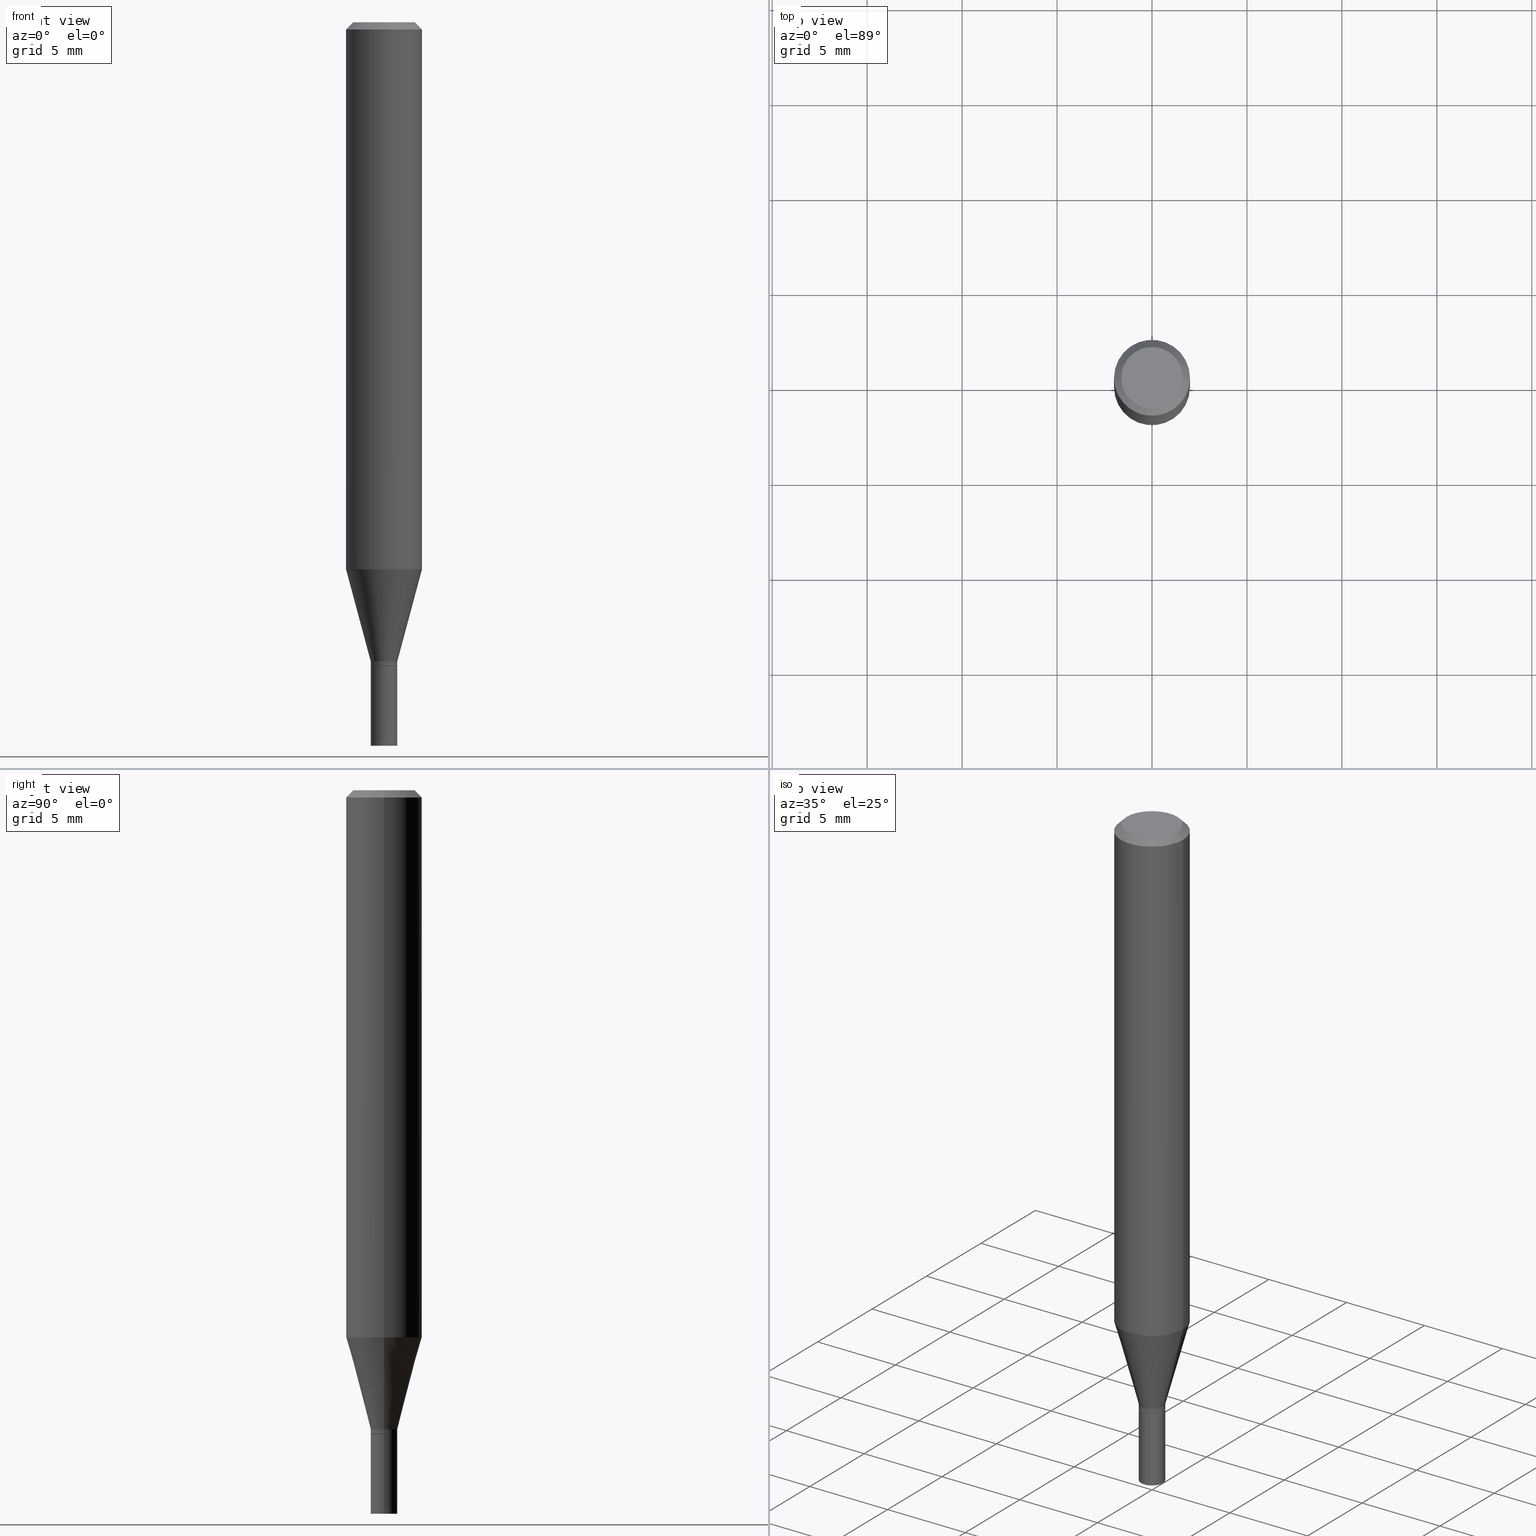
[diagram: canonical four-view strip — front | top / right | iso, engineering-drawing reading convention]
A machine part, canonical four-view strip (front | top / right | iso — engineering-drawing reading convention). The complete STEP part file that produces these views, byte-faithful:
ISO-10303-21;
HEADER;
FILE_DESCRIPTION (( 'STEP AP203' ),
    '1' );
FILE_NAME ('02907.STEP',
    '2024-03-18T22:11:17',
    ( '' ),
    ( '' ),
    'SwSTEP 2.0',
    'SolidWorks 2023',
    '' );
FILE_SCHEMA (( 'CONFIG_CONTROL_DESIGN' ));
ENDSEC;

DATA;
#1 = AXIS2_PLACEMENT_3D ( 'NONE', #428, #238, #127 ) ;
#2 = AXIS2_PLACEMENT_3D ( 'NONE', #442, #149, #153 ) ;
#3 = EDGE_CURVE ( 'NONE', #427, #406, #180, .T. ) ;
#4 = LINE ( 'NONE', #16, #429 ) ;
#5 = ORIENTED_EDGE ( 'NONE', *, *, #65, .F. ) ;
#6 = ADVANCED_FACE ( 'NONE', ( #186 ), #466, .T. ) ;
#7 = DIRECTION ( 'NONE',  ( 1.000000000000000000, -6.982962677686265922E-15, 4.876176775795935793E-29 ) ) ;
#8 = CARTESIAN_POINT ( 'NONE',  ( 0.000000000000000000, 0.000000000000000000, 0.000000000000000000 ) ) ;
#9 = CALENDAR_DATE ( 2024, 18, 3 ) ;
#10 = ORIENTED_EDGE ( 'NONE', *, *, #367, .T. ) ;
#11 = AXIS2_PLACEMENT_3D ( 'NONE', #178, #246, #313 ) ;
#12 = CARTESIAN_POINT ( 'NONE',  ( 0.000000000000000000, 0.000000000000000000, 0.000000000000000000 ) ) ;
#13 = SECURITY_CLASSIFICATION ( '', '', #52 ) ;
#14 = EDGE_CURVE ( 'NONE', #340, #117, #4, .T. ) ;
#15 = ADVANCED_FACE ( 'NONE', ( #46 ), #305, .F. ) ;
#16 = CARTESIAN_POINT ( 'NONE',  ( 0.07875000000000000056, -5.499083108677934443E-16, 3.839989210939299016E-30 ) ) ;
#17 = CARTESIAN_POINT ( 'NONE',  ( -0.07875000000000000056, -1.446162217407653389E-15, -0.01499999999999999944 ) ) ;
#18 = EDGE_CURVE ( 'NONE', #343, #154, #74, .T. ) ;
#19 = CARTESIAN_POINT ( 'NONE',  ( 3.263722668734683183E-29, -4.659730994820061919E-15, -1.334600000000000009 ) ) ;
#20 = PERSON_AND_ORGANIZATION_ROLE ( 'design_owner' ) ;
#21 = AXIS2_PLACEMENT_3D ( 'NONE', #35, #143, #464 ) ;
#22 = VERTEX_POINT ( 'NONE', #439 ) ;
#23 = FACE_OUTER_BOUND ( 'NONE', #98, .T. ) ;
#24 = CARTESIAN_POINT ( 'NONE',  ( 2.772963539945309920E-29, -3.959057023554817696E-15, -1.133918998652473586 ) ) ;
#25 = ORIENTED_EDGE ( 'NONE', *, *, #434, .F. ) ;
#26 = DIRECTION ( 'NONE',  ( 1.000000000000000000, -6.982962677686256455E-15, 0.000000000000000000 ) ) ;
#27 = ORIENTED_EDGE ( 'NONE', *, *, #145, .F. ) ;
#28 = CARTESIAN_POINT ( 'NONE',  ( 3.263722668734683183E-29, -4.659730994820061919E-15, -1.334600000000000009 ) ) ;
#29 = CC_DESIGN_DATE_AND_TIME_ASSIGNMENT ( #43, #166, ( #13 ) ) ;
#30 = LOCAL_TIME ( 18, 11, 17.00000000000000000, #338 ) ;
#31 = CARTESIAN_POINT ( 'NONE',  ( 3.240246168195306775E-29, -4.626212773967169051E-15, -1.325000000000000178 ) ) ;
#32 = ORIENTED_EDGE ( 'NONE', *, *, #286, .T. ) ;
#33 = ORIENTED_EDGE ( 'NONE', *, *, #192, .T. ) ;
#34 = DIRECTION ( 'NONE',  ( 1.000000000000000000, -6.982962677686265922E-15, 0.000000000000000000 ) ) ;
#35 = CARTESIAN_POINT ( 'NONE',  ( 3.240246168195306775E-29, -4.626212773967169051E-15, -1.325000000000000178 ) ) ;
#36 = CIRCLE ( 'NONE', #321, 0.02705000000000000113 ) ;
#37 = PERSON ( 'UNSPECIFIED', 'UNSPECIFIED', 'UNSPECIFIED', ('UNSPECIFIED'), ('UNSPECIFIED'), ('UNSPECIFIED') ) ;
#38 = VECTOR ( 'NONE', #129, 39.37007874015748143 ) ;
#39 = DIRECTION ( 'NONE',  ( -1.000000000000000000, 6.982962677686265922E-15, -4.876176775795935793E-29 ) ) ;
#40 = CARTESIAN_POINT ( 'NONE',  ( 3.668203209277704895E-29, -5.237222008264718177E-15, -1.500000000000000222 ) ) ;
#41 = CARTESIAN_POINT ( 'NONE',  ( -0.02755000000000000157, -4.752721977840483101E-15, -1.500000000000000222 ) ) ;
#42 = DIRECTION ( 'NONE',  ( -2.445468806185136597E-29, 3.491481338843145583E-15, 1.000000000000000000 ) ) ;
#43 = DATE_AND_TIME ( #224, #113 ) ;
#44 = DIRECTION ( 'NONE',  ( -0.2588190451025209060, 5.211531920934547097E-15, 0.9659258262890682012 ) ) ;
#45 = PERSON_AND_ORGANIZATION ( #37, #261 ) ;
#46 = FACE_OUTER_BOUND ( 'NONE', #420, .T. ) ;
#47 = CIRCLE ( 'NONE', #366, 0.07875000000000000056 ) ;
#48 = DIRECTION ( 'NONE',  ( -2.445468806185136877E-29, 3.491481338843145188E-15, 1.000000000000000000 ) ) ;
#49 = ADVANCED_FACE ( 'NONE', ( #111 ), #265, .T. ) ;
#50 = ORIENTED_EDGE ( 'NONE', *, *, #451, .F. ) ;
#51 = FACE_OUTER_BOUND ( 'NONE', #73, .T. ) ;
#52 = SECURITY_CLASSIFICATION_LEVEL ( 'unclassified' ) ;
#53 = LINE ( 'NONE', #344, #54 ) ;
#54 = VECTOR ( 'NONE', #342, 39.37007874015748143 ) ;
#55 = DATE_AND_TIME ( #9, #30 ) ;
#56 = DIRECTION ( 'NONE',  ( -1.000000000000000000, 6.982962677686265922E-15, 0.000000000000000000 ) ) ;
#57 = MANIFOLD_SOLID_BREP ( 'Body-Move/Copy2[1]', #354 ) ;
#58 = ORIENTED_EDGE ( 'NONE', *, *, #176, .F. ) ;
#59 = DIRECTION ( 'NONE',  ( -2.445468806185136597E-29, 3.491481338843145583E-15, 1.000000000000000000 ) ) ;
#60 = ORIENTED_EDGE ( 'NONE', *, *, #295, .T. ) ;
#61 = LINE ( 'NONE', #212, #38 ) ;
#62 = AXIS2_PLACEMENT_3D ( 'NONE', #372, #279, #56 ) ;
#63 = PRODUCT ( '02907', '02907', '', ( #165 ) ) ;
#64 = EDGE_LOOP ( 'NONE', ( #375, #128, #463, #422 ) ) ;
#65 = EDGE_CURVE ( 'NONE', #397, #427, #294, .T. ) ;
#66 = CONICAL_SURFACE ( 'NONE', #62, 0.07875000000000000056, 0.7853981633974631560 ) ;
#67 = AXIS2_PLACEMENT_3D ( 'NONE', #247, #262, #90 ) ;
#68 = PRODUCT_DEFINITION_SHAPE ( 'NONE', 'NONE',  #76 ) ;
#69 = DIMENSIONAL_EXPONENTS ( 1.000000000000000000, 0.000000000000000000, 0.000000000000000000, 0.000000000000000000, 0.000000000000000000, 0.000000000000000000, 0.000000000000000000 ) ;
#70 = ORIENTED_EDGE ( 'NONE', *, *, #167, .T. ) ;
#71 = AXIS2_PLACEMENT_3D ( 'NONE', #258, #322, #142 ) ;
#72 = AXIS2_PLACEMENT_3D ( 'NONE', #24, #257, #215 ) ;
#73 = EDGE_LOOP ( 'NONE', ( #209, #116, #327, #130 ) ) ;
#74 = LINE ( 'NONE', #119, #150 ) ;
#75 = CARTESIAN_POINT ( 'NONE',  ( 0.02705000000000000113, -4.848620135251475705E-15, -1.334600000000000009 ) ) ;
#76 = PRODUCT_DEFINITION ( 'UNKNOWN', '', #163, #202 ) ;
#77 = COORDINATED_UNIVERSAL_TIME_OFFSET ( 5, 0, .BEHIND. ) ;
#78 = DIRECTION ( 'NONE',  ( -2.445468806185136877E-29, 3.491481338843145188E-15, 1.000000000000000000 ) ) ;
#79 = CARTESIAN_POINT ( 'NONE',  ( 0.02754999999999993218, -4.818593395737425055E-15, -1.325000000000000178 ) ) ;
#80 = CARTESIAN_POINT ( 'NONE',  ( -0.06375000000000000111, 4.713499807438221352E-16, -4.447989849365133964E-16 ) ) ;
#81 = EDGE_LOOP ( 'NONE', ( #32, #408 ) ) ;
#82 = AXIS2_PLACEMENT_3D ( 'NONE', #319, #462, #136 ) ;
#83 = ORIENTED_EDGE ( 'NONE', *, *, #381, .T. ) ;
#84 = LINE ( 'NONE', #270, #194 ) ;
#85 = DIRECTION ( 'NONE',  ( -2.445468806185136597E-29, 3.491481338843145583E-15, 1.000000000000000000 ) ) ;
#86 = EDGE_LOOP ( 'NONE', ( #370, #284, #242, #253 ) ) ;
#87 = CYLINDRICAL_SURFACE ( 'NONE', #195, 0.02754999999999993218 ) ;
#88 = VERTEX_POINT ( 'NONE', #79 ) ;
#89 = DIRECTION ( 'NONE',  ( -2.445468806185136597E-29, 3.491481338843145583E-15, 1.000000000000000000 ) ) ;
#90 = DIRECTION ( 'NONE',  ( 1.000000000000000000, -6.982962677686265922E-15, 4.876176775795936353E-29 ) ) ;
#91 = PERSON_AND_ORGANIZATION ( #37, #261 ) ;
#92 = EDGE_LOOP ( 'NONE', ( #441, #207, #216, #27 ) ) ;
#93 = CARTESIAN_POINT ( 'NONE',  ( 3.263722668734683183E-29, -4.659730994820061919E-15, -1.334600000000000009 ) ) ;
#94 = PERSON_AND_ORGANIZATION ( #37, #261 ) ;
#95 = AXIS2_PLACEMENT_3D ( 'NONE', #28, #174, #26 ) ;
#96 = ORIENTED_EDGE ( 'NONE', *, *, #367, .F. ) ;
#97 = CARTESIAN_POINT ( 'NONE',  ( 3.262499934331591502E-29, -4.657985254150640416E-15, -1.334100000000000064 ) ) ;
#98 = EDGE_LOOP ( 'NONE', ( #316, #347, #96, #312 ) ) ;
#99 = CARTESIAN_POINT ( 'NONE',  ( 3.668203209277705088E-31, -5.237222008264718399E-17, -0.01499999999999999944 ) ) ;
#100 = ORIENTED_EDGE ( 'NONE', *, *, #357, .F. ) ;
#101 = CC_DESIGN_DATE_AND_TIME_ASSIGNMENT ( #362, #446, ( #76 ) ) ;
#102 = DIRECTION ( 'NONE',  ( 1.000000000000000000, -6.982962677686256455E-15, 0.000000000000000000 ) ) ;
#103 = CLOSED_SHELL ( 'NONE', ( #228, #198, #283, #137, #49, #251, #320, #306, #259, #15, #6, #444 ) ) ;
#104 = EDGE_CURVE ( 'NONE', #397, #88, #84, .T. ) ;
#105 = CIRCLE ( 'NONE', #355, 0.07875000000000000056 ) ;
#106 = PLANE ( 'NONE',  #71 ) ;
#107 = CARTESIAN_POINT ( 'NONE',  ( -0.02705000000000000113, -4.467529184796954688E-15, -1.334600000000000009 ) ) ;
#108 = CARTESIAN_POINT ( 'NONE',  ( 0.02755000000000000157, -4.852111616590317923E-15, -1.334600000000000009 ) ) ;
#109 = AXIS2_PLACEMENT_3D ( 'NONE', #31, #59, #314 ) ;
#110 = CARTESIAN_POINT ( 'NONE',  ( -0.02755000000000000157, 1.957545237019076124E-16, -1.355166617365226565E-30 ) ) ;
#111 = FACE_OUTER_BOUND ( 'NONE', #232, .T. ) ;
#112 = PERSON_AND_ORGANIZATION_ROLE ( 'creator' ) ;
#113 = LOCAL_TIME ( 18, 11, 17.00000000000000000, #77 ) ;
#114 = CARTESIAN_POINT ( 'NONE',  ( 0.07875000000000000056, -6.022805309504406221E-16, -0.01499999999999999944 ) ) ;
#115 = CALENDAR_DATE ( 2024, 18, 3 ) ;
#116 = ORIENTED_EDGE ( 'NONE', *, *, #286, .F. ) ;
#117 = VERTEX_POINT ( 'NONE', #114 ) ;
#118 = ORIENTED_EDGE ( 'NONE', *, *, #147, .F. ) ;
#119 = CARTESIAN_POINT ( 'NONE',  ( -0.07875000000000000056, 5.595524044110789003E-16, -3.873661383575737792E-30 ) ) ;
#120 = APPROVAL_STATUS ( 'not_yet_approved' ) ;
#121 = ORIENTED_EDGE ( 'NONE', *, *, #167, .F. ) ;
#122 = CC_DESIGN_PERSON_AND_ORGANIZATION_ASSIGNMENT ( #94, #415, ( #163 ) ) ;
#123 = CIRCLE ( 'NONE', #450, 0.02755000000000000157 ) ;
#124 = DIRECTION ( 'NONE',  ( 2.438088387897960049E-29, -3.491481338843145188E-15, -1.000000000000000000 ) ) ;
#125 = CALENDAR_DATE ( 2024, 18, 3 ) ;
#126 = ORIENTED_EDGE ( 'NONE', *, *, #220, .T. ) ;
#127 = DIRECTION ( 'NONE',  ( 1.000000000000000000, -6.982962677686256455E-15, 0.000000000000000000 ) ) ;
#128 = ORIENTED_EDGE ( 'NONE', *, *, #357, .T. ) ;
#129 = DIRECTION ( 'NONE',  ( -0.7071067811865580088, 2.468850131082366712E-15, -0.7071067811865370256 ) ) ;
#130 = ORIENTED_EDGE ( 'NONE', *, *, #451, .T. ) ;
#131 = CARTESIAN_POINT ( 'NONE',  ( 0.07875000000000000056, -5.926364374071552647E-16, -0.01499999999999999944 ) ) ;
#132 = APPROVAL_DATE_TIME ( #304, #326 ) ;
#133 = CONICAL_SURFACE ( 'NONE', #315, 0.07875000000000000056, 0.7853981633974631560 ) ;
#134 = DIRECTION ( 'NONE',  ( 1.000000000000000000, -6.982962677686273810E-15, 0.000000000000000000 ) ) ;
#135 = ORIENTED_EDGE ( 'NONE', *, *, #460, .F. ) ;
#136 = DIRECTION ( 'NONE',  ( 1.000000000000000000, -6.982962677686265922E-15, 4.852736867747365646E-29 ) ) ;
#137 = ADVANCED_FACE ( 'NONE', ( #263 ), #368, .T. ) ;
#138 = CARTESIAN_POINT ( 'NONE',  ( 0.02705000000000000113, -4.848620135251475705E-15, -1.334600000000000009 ) ) ;
#139 = CARTESIAN_POINT ( 'NONE',  ( -0.02755000000000000157, -4.752721977840483101E-15, -1.334600000000000009 ) ) ;
#140 = AXIS2_PLACEMENT_3D ( 'NONE', #196, #124, #39 ) ;
#141 = CIRCLE ( 'NONE', #309, 0.07875000000000000056 ) ;
#142 = DIRECTION ( 'NONE',  ( 1.000000000000000000, -6.982962677686265922E-15, 4.876176775795935793E-29 ) ) ;
#143 = DIRECTION ( 'NONE',  ( -2.445468806185136597E-29, 3.491481338843145583E-15, 1.000000000000000000 ) ) ;
#144 = EDGE_CURVE ( 'NONE', #406, #343, #358, .T. ) ;
#145 = EDGE_CURVE ( 'NONE', #22, #389, #334, .T. ) ;
#146 = AXIS2_PLACEMENT_3D ( 'NONE', #19, #89, #378 ) ;
#147 = EDGE_CURVE ( 'NONE', #22, #447, #332, .T. ) ;
#148 = DIRECTION ( 'NONE',  ( -2.438088387897960049E-29, 3.491481338843145188E-15, 1.000000000000000000 ) ) ;
#149 = DIRECTION ( 'NONE',  ( 0.000000000000000000, 0.000000000000000000, 1.000000000000000000 ) ) ;
#150 = VECTOR ( 'NONE', #78, 39.37007874015748143 ) ;
#151 = APPROVAL_DATE_TIME ( #55, #336 ) ;
#152 = EDGE_LOOP ( 'NONE', ( #349, #387, #162, #423 ) ) ;
#153 = DIRECTION ( 'NONE',  ( 1.000000000000000000, 0.000000000000000000, 0.000000000000000000 ) ) ;
#154 = VERTEX_POINT ( 'NONE', #17 ) ;
#155 = APPLICATION_PROTOCOL_DEFINITION ( 'international standard', 'config_control_design', 1994, #413 ) ;
#156 = ORIENTED_EDGE ( 'NONE', *, *, #465, .F. ) ;
#157 = ADVANCED_FACE ( 'NONE', ( #158 ), #330, .F. ) ;
#158 = FACE_OUTER_BOUND ( 'NONE', #445, .T. ) ;
#159 = PERSON_AND_ORGANIZATION ( #37, #261 ) ;
#160 = VECTOR ( 'NONE', #48, 39.37007874015748143 ) ;
#161 = AXIS2_PLACEMENT_3D ( 'NONE', #374, #417, #317 ) ;
#162 = ORIENTED_EDGE ( 'NONE', *, *, #104, .T. ) ;
#163 = PRODUCT_DEFINITION_FORMATION_WITH_SPECIFIED_SOURCE ( 'ANY', '', #63, .NOT_KNOWN. ) ;
#164 = CARTESIAN_POINT ( 'NONE',  ( 0.000000000000000000, 0.000000000000000000, 0.000000000000000000 ) ) ;
#165 = MECHANICAL_CONTEXT ( 'NONE', #390, 'mechanical' ) ;
#166 = DATE_TIME_ROLE ( 'classification_date' ) ;
#167 = EDGE_CURVE ( 'NONE', #88, #340, #53, .T. ) ;
#168 = ORIENTED_EDGE ( 'NONE', *, *, #383, .T. ) ;
#169 = LINE ( 'NONE', #131, #300 ) ;
#170 = FACE_OUTER_BOUND ( 'NONE', #237, .T. ) ;
#171 = ORIENTED_EDGE ( 'NONE', *, *, #144, .F. ) ;
#172 = ORIENTED_EDGE ( 'NONE', *, *, #14, .T. ) ;
#173 = CIRCLE ( 'NONE', #82, 0.06375000000000000111 ) ;
#174 = DIRECTION ( 'NONE',  ( -2.445468806185136597E-29, 3.491481338843145583E-15, 1.000000000000000000 ) ) ;
#175 = CARTESIAN_POINT ( 'NONE',  ( 0.02754999999999992524, -4.850365875920897209E-15, -1.334100000000000064 ) ) ;
#176 = EDGE_CURVE ( 'NONE', #426, #248, #398, .T. ) ;
#177 = ORIENTED_EDGE ( 'NONE', *, *, #293, .F. ) ;
#178 = CARTESIAN_POINT ( 'NONE',  ( 4.451638707024993845E-16, 0.06375000000000000111, -4.449814278195055523E-16 ) ) ;
#179 = DIRECTION ( 'NONE',  ( 1.000000000000000000, -6.982962677686273810E-15, 0.000000000000000000 ) ) ;
#180 = LINE ( 'NONE', #399, #160 ) ;
#181 = CARTESIAN_POINT ( 'NONE',  ( 3.668203209277705088E-31, -5.237222008264718399E-17, -0.01499999999999999944 ) ) ;
#182 = AXIS2_PLACEMENT_3D ( 'NONE', #97, #285, #424 ) ;
#183 = CC_DESIGN_PERSON_AND_ORGANIZATION_ASSIGNMENT ( #440, #20, ( #63 ) ) ;
#184 = ADVANCED_BREP_SHAPE_REPRESENTATION ( '02907', ( #57, #363, #2 ), #436 ) ;
#185 = AXIS2_PLACEMENT_3D ( 'NONE', #453, #382, #243 ) ;
#186 = FACE_OUTER_BOUND ( 'NONE', #411, .T. ) ;
#187 = CARTESIAN_POINT ( 'NONE',  ( 3.263722668734683183E-29, -4.659730994820061919E-15, -1.334600000000000009 ) ) ;
#188 = LINE ( 'NONE', #75, #204 ) ;
#189 = APPROVAL_ROLE ( '' ) ;
#190 = DIRECTION ( 'NONE',  ( -2.445468806185136877E-29, 3.491481338843145188E-15, 1.000000000000000000 ) ) ;
#191 = COORDINATED_UNIVERSAL_TIME_OFFSET ( 5, 0, .BEHIND. ) ;
#192 = EDGE_CURVE ( 'NONE', #248, #426, #36, .T. ) ;
#193 = AXIS2_PLACEMENT_3D ( 'NONE', #40, #403, #356 ) ;
#194 = VECTOR ( 'NONE', #235, 39.37007874015748143 ) ;
#195 = AXIS2_PLACEMENT_3D ( 'NONE', #12, #373, #335 ) ;
#196 = CARTESIAN_POINT ( 'NONE',  ( 1.923806217702892842E-16, 0.02754999999999534210, -1.334600000000000009 ) ) ;
#197 = COORDINATED_UNIVERSAL_TIME_OFFSET ( 5, 0, .BEHIND. ) ;
#198 = ADVANCED_FACE ( 'NONE', ( #458 ), #419, .T. ) ;
#199 = EDGE_CURVE ( 'NONE', #379, #117, #169, .T. ) ;
#200 = DIRECTION ( 'NONE',  ( 1.000000000000000000, -6.982962677686275388E-15, 0.000000000000000000 ) ) ;
#201 = FACE_OUTER_BOUND ( 'NONE', #302, .T. ) ;
#202 = DESIGN_CONTEXT ( 'detailed design', #413, 'design' ) ;
#203 = CIRCLE ( 'NONE', #72, 0.07875000000000000056 ) ;
#204 = VECTOR ( 'NONE', #405, 39.37007874015748143 ) ;
#205 = DIRECTION ( 'NONE',  ( 1.000000000000000000, -6.982962677686273810E-15, 0.000000000000000000 ) ) ;
#206 = PERSON_AND_ORGANIZATION ( #37, #261 ) ;
#207 = ORIENTED_EDGE ( 'NONE', *, *, #438, .T. ) ;
#208 = CYLINDRICAL_SURFACE ( 'NONE', #385, 0.07875000000000000056 ) ;
#209 = ORIENTED_EDGE ( 'NONE', *, *, #199, .F. ) ;
#210 = DIRECTION ( 'NONE',  ( -1.000000000000000000, 6.982962677686265922E-15, 0.000000000000000000 ) ) ;
#211 = CIRCLE ( 'NONE', #1, 0.02755000000000000157 ) ;
#212 = CARTESIAN_POINT ( 'NONE',  ( -0.07875000000000000056, 4.975360907851462665E-16, -0.01499999999999999944 ) ) ;
#213 = CC_DESIGN_PERSON_AND_ORGANIZATION_ASSIGNMENT ( #206, #418, ( #163 ) ) ;
#214 = APPROVAL_PERSON_ORGANIZATION ( #45, #326, #410 ) ;
#215 = DIRECTION ( 'NONE',  ( 1.000000000000000000, -6.982962677686268288E-15, 0.000000000000000000 ) ) ;
#216 = ORIENTED_EDGE ( 'NONE', *, *, #295, .F. ) ;
#217 = CARTESIAN_POINT ( 'NONE',  ( 0.06375000000000000111, -5.149965923825459168E-16, -4.447989849365068883E-16 ) ) ;
#218 = CIRCLE ( 'NONE', #182, 0.02754999999999992524 ) ;
#219 = CC_DESIGN_APPROVAL ( #269, ( #76 ) ) ;
#220 = EDGE_CURVE ( 'NONE', #416, #389, #244, .T. ) ;
#221 = CIRCLE ( 'NONE', #21, 0.02754999999999993218 ) ;
#222 = DIRECTION ( 'NONE',  ( -2.445468806185136597E-29, 3.491481338843145583E-15, 1.000000000000000000 ) ) ;
#223 = COORDINATED_UNIVERSAL_TIME_OFFSET ( 5, 0, .BEHIND. ) ;
#224 = CALENDAR_DATE ( 2024, 18, 3 ) ;
#225 = PERSON_AND_ORGANIZATION ( #37, #261 ) ;
#226 = PRODUCT_RELATED_PRODUCT_CATEGORY ( 'detail', '', ( #63 ) ) ;
#227 = ORIENTED_EDGE ( 'NONE', *, *, #425, .F. ) ;
#228 = ADVANCED_FACE ( 'NONE', ( #23 ), #276, .T. ) ;
#229 = CARTESIAN_POINT ( 'NONE',  ( -0.02754999999999993218, -4.430458250265261709E-15, -1.325000000000000178 ) ) ;
#230 = LENGTH_MEASURE_WITH_UNIT ( LENGTH_MEASURE( 0.02539999999999999897 ), #404 );
#231 = ADVANCED_FACE ( 'NONE', ( #461 ), #455, .T. ) ;
#232 = EDGE_LOOP ( 'NONE', ( #10, #287, #227, #121 ) ) ;
#233 = VECTOR ( 'NONE', #190, 39.37007874015748143 ) ;
#234 = APPROVAL_PERSON_ORGANIZATION ( #91, #336, #189 ) ;
#235 = DIRECTION ( 'NONE',  ( -2.445468806185136877E-29, 3.491481338843145188E-15, 1.000000000000000000 ) ) ;
#236 = DIRECTION ( 'NONE',  ( 1.000000000000000000, -6.982962677686268288E-15, 0.000000000000000000 ) ) ;
#237 = EDGE_LOOP ( 'NONE', ( #171, #168, #70, #135 ) ) ;
#238 = DIRECTION ( 'NONE',  ( -2.445468806185136597E-29, 3.491481338843145583E-15, 1.000000000000000000 ) ) ;
#239 = DIRECTION ( 'NONE',  ( 1.000000000000000000, -6.982962677686265922E-15, 0.000000000000000000 ) ) ;
#240 = CC_DESIGN_PERSON_AND_ORGANIZATION_ASSIGNMENT ( #267, #301, ( #13 ) ) ;
#241 = EDGE_CURVE ( 'NONE', #427, #397, #218, .T. ) ;
#242 = ORIENTED_EDGE ( 'NONE', *, *, #381, .F. ) ;
#243 = DIRECTION ( 'NONE',  ( 1.000000000000000000, -6.982962677686265922E-15, 4.852736867747365646E-29 ) ) ;
#244 = CIRCLE ( 'NONE', #95, 0.02755000000000000157 ) ;
#245 = ORIENTED_EDGE ( 'NONE', *, *, #292, .F. ) ;
#246 = DIRECTION ( 'NONE',  ( 2.438088387897960049E-29, -3.491481338843145188E-15, -1.000000000000000000 ) ) ;
#247 = CARTESIAN_POINT ( 'NONE',  ( 0.000000000000000000, 0.000000000000000000, 0.000000000000000000 ) ) ;
#248 = VERTEX_POINT ( 'NONE', #288 ) ;
#249 = FACE_OUTER_BOUND ( 'NONE', #454, .T. ) ;
#250 = ORIENTED_EDGE ( 'NONE', *, *, #192, .F. ) ;
#251 = ADVANCED_FACE ( 'NONE', ( #170 ), #459, .T. ) ;
#252 = DIRECTION ( 'NONE',  ( 2.445468806185136597E-29, -3.491481338843145583E-15, -1.000000000000000000 ) ) ;
#253 = ORIENTED_EDGE ( 'NONE', *, *, #14, .F. ) ;
#254 = VECTOR ( 'NONE', #44, 39.37007874015748143 ) ;
#255 = CARTESIAN_POINT ( 'NONE',  ( 3.240246168195306775E-29, -4.626212773967169051E-15, -1.325000000000000178 ) ) ;
#256 = VECTOR ( 'NONE', #353, 39.37007874015748143 ) ;
#257 = DIRECTION ( 'NONE',  ( -2.445468806185136597E-29, 3.491481338843145583E-15, 1.000000000000000000 ) ) ;
#258 = CARTESIAN_POINT ( 'NONE',  ( 3.576687321579069994E-29, -5.368277968210015545E-15, -1.500000000000000222 ) ) ;
#259 = ADVANCED_FACE ( 'NONE', ( #310 ), #412, .F. ) ;
#260 = AXIS2_PLACEMENT_3D ( 'NONE', #348, #341, #134 ) ;
#261 = ORGANIZATION ( 'UNSPECIFIED', 'UNSPECIFIED', '' ) ;
#262 = DIRECTION ( 'NONE',  ( -2.445468806185136597E-29, 3.491481338843145583E-15, 1.000000000000000000 ) ) ;
#263 = FACE_OUTER_BOUND ( 'NONE', #86, .T. ) ;
#264 = APPROVAL_DATE_TIME ( #449, #269 ) ;
#265 = CONICAL_SURFACE ( 'NONE', #392, 0.02754999999999993218, 0.2617993877991495744 ) ;
#266 = DIRECTION ( 'NONE',  ( -2.445468806185136597E-29, 3.491481338843145583E-15, 1.000000000000000000 ) ) ;
#267 = PERSON_AND_ORGANIZATION ( #37, #261 ) ;
#268 = DIRECTION ( 'NONE',  ( 1.000000000000000000, -6.982962677686265922E-15, 4.876176775795935232E-29 ) ) ;
#269 = APPROVAL ( #307, 'UNSPECIFIED' ) ;
#270 = CARTESIAN_POINT ( 'NONE',  ( 0.02754999999999993218, -1.923806217702561767E-16, 1.343386701731777005E-30 ) ) ;
#271 = CARTESIAN_POINT ( 'NONE',  ( 3.668203209277705088E-31, -5.237222008264718399E-17, -0.01499999999999999944 ) ) ;
#272 = CYLINDRICAL_SURFACE ( 'NONE', #67, 0.02755000000000000157 ) ;
#273 = ORIENTED_EDGE ( 'NONE', *, *, #176, .T. ) ;
#274 =( NAMED_UNIT ( * ) PLANE_ANGLE_UNIT ( ) SI_UNIT ( $, .RADIAN. ) );
#275 = ORIENTED_EDGE ( 'NONE', *, *, #18, .F. ) ;
#276 = CYLINDRICAL_SURFACE ( 'NONE', #161, 0.02754999999999993218 ) ;
#277 = EDGE_LOOP ( 'NONE', ( #118, #100 ) ) ;
#278 = ORIENTED_EDGE ( 'NONE', *, *, #434, .T. ) ;
#279 = DIRECTION ( 'NONE',  ( 2.445468806185136597E-29, -3.491481338843145583E-15, -1.000000000000000000 ) ) ;
#280 = AXIS2_PLACEMENT_3D ( 'NONE', #361, #222, #268 ) ;
#281 = ORIENTED_EDGE ( 'NONE', *, *, #465, .T. ) ;
#282 = DIRECTION ( 'NONE',  ( 0.7071067811865580088, -7.319954787623290755E-15, -0.7071067811865370256 ) ) ;
#283 = ADVANCED_FACE ( 'NONE', ( #249 ), #133, .T. ) ;
#284 = ORIENTED_EDGE ( 'NONE', *, *, #18, .T. ) ;
#285 = DIRECTION ( 'NONE',  ( -2.445468806185136597E-29, 3.491481338843145583E-15, 1.000000000000000000 ) ) ;
#286 = EDGE_CURVE ( 'NONE', #452, #379, #289, .T. ) ;
#287 = ORIENTED_EDGE ( 'NONE', *, *, #144, .T. ) ;
#288 = CARTESIAN_POINT ( 'NONE',  ( -0.02705000000000000113, -4.464879957622843487E-15, -1.334600000000000009 ) ) ;
#289 = CIRCLE ( 'NONE', #185, 0.06375000000000000111 ) ;
#290 = CC_DESIGN_APPROVAL ( #326, ( #163 ) ) ;
#291 = CARTESIAN_POINT ( 'NONE',  ( -0.02754999999999992524, -4.462230730448733074E-15, -1.334100000000000064 ) ) ;
#292 = EDGE_CURVE ( 'NONE', #452, #154, #61, .T. ) ;
#293 = EDGE_CURVE ( 'NONE', #379, #452, #173, .T. ) ;
#294 = CIRCLE ( 'NONE', #435, 0.02754999999999992524 ) ;
#295 = EDGE_CURVE ( 'NONE', #389, #416, #211, .T. ) ;
#296 = DIRECTION ( 'NONE',  ( -2.445468806185136597E-29, 3.491481338843145583E-15, 1.000000000000000000 ) ) ;
#297 = FACE_OUTER_BOUND ( 'NONE', #152, .T. ) ;
#298 = DIRECTION ( 'NONE',  ( -2.445468806185136597E-29, 3.491481338843145583E-15, 1.000000000000000000 ) ) ;
#299 = APPLICATION_PROTOCOL_DEFINITION ( 'international standard', 'config_control_design', 1994, #390 ) ;
#300 = VECTOR ( 'NONE', #282, 39.37007874015748143 ) ;
#301 = PERSON_AND_ORGANIZATION_ROLE ( 'classification_officer' ) ;
#302 = EDGE_LOOP ( 'NONE', ( #275, #443, #172, #50 ) ) ;
#303 = CARTESIAN_POINT ( 'NONE',  ( 3.240246168195306775E-29, -4.626212773967169051E-15, -1.325000000000000178 ) ) ;
#304 = DATE_AND_TIME ( #331, #431 ) ;
#305 = PLANE ( 'NONE',  #365 ) ;
#306 = ADVANCED_FACE ( 'NONE', ( #51 ), #66, .T. ) ;
#307 = APPROVAL_STATUS ( 'not_yet_approved' ) ;
#308 = AXIS2_PLACEMENT_3D ( 'NONE', #255, #388, #179 ) ;
#309 = AXIS2_PLACEMENT_3D ( 'NONE', #271, #85, #239 ) ;
#310 = FACE_OUTER_BOUND ( 'NONE', #81, .T. ) ;
#311 = APPROVAL_ROLE ( '' ) ;
#312 = ORIENTED_EDGE ( 'NONE', *, *, #104, .F. ) ;
#313 = DIRECTION ( 'NONE',  ( -1.000000000000000000, 6.982962677686265922E-15, -4.876176775795935793E-29 ) ) ;
#314 = DIRECTION ( 'NONE',  ( 1.000000000000000000, -6.982962677686273810E-15, 0.000000000000000000 ) ) ;
#315 = AXIS2_PLACEMENT_3D ( 'NONE', #99, #252, #210 ) ;
#316 = ORIENTED_EDGE ( 'NONE', *, *, #65, .T. ) ;
#317 = DIRECTION ( 'NONE',  ( 1.000000000000000000, -6.982962677686266711E-15, 4.876176775795935793E-29 ) ) ;
#318 = CARTESIAN_POINT ( 'NONE',  ( -0.02754999999999993218, -3.914981434704499907E-15, -1.325000000000000178 ) ) ;
#319 = CARTESIAN_POINT ( 'NONE',  ( 1.087742042685048154E-44, -1.553007355442198790E-30, -4.447989849365101424E-16 ) ) ;
#320 = ADVANCED_FACE ( 'NONE', ( #201 ), #208, .T. ) ;
#321 = AXIS2_PLACEMENT_3D ( 'NONE', #93, #337, #205 ) ;
#322 = DIRECTION ( 'NONE',  ( -2.438088387897960049E-29, 3.491481338843145188E-15, 1.000000000000000000 ) ) ;
#323 = DIRECTION ( 'NONE',  ( 1.000000000000000000, -6.982962677686265922E-15, 4.876176775795935232E-29 ) ) ;
#324 = VECTOR ( 'NONE', #395, 39.37007874015748143 ) ;
#325 = DIRECTION ( 'NONE',  ( -2.445468806185136877E-29, 3.491481338843145188E-15, 1.000000000000000000 ) ) ;
#326 = APPROVAL ( #120, 'UNSPECIFIED' ) ;
#327 = ORIENTED_EDGE ( 'NONE', *, *, #292, .T. ) ;
#328 = DIRECTION ( 'NONE',  ( 1.000000000000000000, -6.982962677686273810E-15, 0.000000000000000000 ) ) ;
#329 = DIRECTION ( 'NONE',  ( -2.445468806185136597E-29, 3.491481338843145583E-15, 1.000000000000000000 ) ) ;
#330 = PLANE ( 'NONE',  #140 ) ;
#331 = CALENDAR_DATE ( 2024, 18, 3 ) ;
#332 = CIRCLE ( 'NONE', #193, 0.02755000000000000157 ) ;
#333 = DIRECTION ( 'NONE',  ( -2.445468806185136597E-29, 3.491481338843145583E-15, 1.000000000000000000 ) ) ;
#334 = LINE ( 'NONE', #364, #233 ) ;
#335 = DIRECTION ( 'NONE',  ( 1.000000000000000000, -6.982962677686266711E-15, 4.876176775795935793E-29 ) ) ;
#336 = APPROVAL ( #376, 'UNSPECIFIED' ) ;
#337 = DIRECTION ( 'NONE',  ( -2.445468806185136597E-29, 3.491481338843145583E-15, 1.000000000000000000 ) ) ;
#338 = COORDINATED_UNIVERSAL_TIME_OFFSET ( 5, 0, .BEHIND. ) ;
#339 = LOCAL_TIME ( 18, 11, 17.00000000000000000, #223 ) ;
#340 = VERTEX_POINT ( 'NONE', #402 ) ;
#341 = DIRECTION ( 'NONE',  ( -2.445468806185136597E-29, 3.491481338843145583E-15, 1.000000000000000000 ) ) ;
#342 = DIRECTION ( 'NONE',  ( 0.2588190451025209060, 1.565188264969625123E-15, 0.9659258262890682012 ) ) ;
#343 = VERTEX_POINT ( 'NONE', #360 ) ;
#344 = CARTESIAN_POINT ( 'NONE',  ( 0.02754999999999993218, -4.818593395737425055E-15, -1.325000000000000178 ) ) ;
#345 = AXIS2_PLACEMENT_3D ( 'NONE', #187, #296, #328 ) ;
#346 = APPROVAL_PERSON_ORGANIZATION ( #159, #269, #311 ) ;
#347 = ORIENTED_EDGE ( 'NONE', *, *, #3, .T. ) ;
#348 = CARTESIAN_POINT ( 'NONE',  ( 3.263722668734683183E-29, -4.659730994820061919E-15, -1.334600000000000009 ) ) ;
#349 = ORIENTED_EDGE ( 'NONE', *, *, #3, .F. ) ;
#350 = DIRECTION ( 'NONE',  ( -2.445468806185136597E-29, 3.491481338843145583E-15, 1.000000000000000000 ) ) ;
#351 = CARTESIAN_POINT ( 'NONE',  ( 3.668203209277704895E-29, -5.237222008264718177E-15, -1.500000000000000222 ) ) ;
#352 = AXIS2_PLACEMENT_3D ( 'NONE', #164, #421, #380 ) ;
#353 = DIRECTION ( 'NONE',  ( -0.7071067811865656694, 7.493145998870420424E-15, 0.7071067811865294761 ) ) ;
#354 = CLOSED_SHELL ( 'NONE', ( #231, #384, #396, #157 ) ) ;
#355 = AXIS2_PLACEMENT_3D ( 'NONE', #181, #350, #34 ) ;
#356 = DIRECTION ( 'NONE',  ( 1.000000000000000000, -6.982962677686256455E-15, 0.000000000000000000 ) ) ;
#357 = EDGE_CURVE ( 'NONE', #447, #22, #123, .T. ) ;
#358 = LINE ( 'NONE', #229, #254 ) ;
#359 = CARTESIAN_POINT ( 'NONE',  ( 2.772963539945309920E-29, -3.959057023554817696E-15, -1.133918998652473586 ) ) ;
#360 = CARTESIAN_POINT ( 'NONE',  ( -0.07875000000000001443, -3.399504619143738500E-15, -1.133918998652473586 ) ) ;
#361 = CARTESIAN_POINT ( 'NONE',  ( 0.000000000000000000, 0.000000000000000000, 0.000000000000000000 ) ) ;
#362 = DATE_AND_TIME ( #125, #339 ) ;
#363 = MANIFOLD_SOLID_BREP ( 'Body-Move/Copy2[2]', #103 ) ;
#364 = CARTESIAN_POINT ( 'NONE',  ( 0.02755000000000000157, -1.923806217702566451E-16, 1.343386701731780509E-30 ) ) ;
#365 = AXIS2_PLACEMENT_3D ( 'NONE', #409, #148, #7 ) ;
#366 = AXIS2_PLACEMENT_3D ( 'NONE', #359, #329, #236 ) ;
#367 = EDGE_CURVE ( 'NONE', #88, #406, #430, .T. ) ;
#368 = CYLINDRICAL_SURFACE ( 'NONE', #280, 0.07875000000000000056 ) ;
#369 =( NAMED_UNIT ( * ) SI_UNIT ( $, .STERADIAN. ) SOLID_ANGLE_UNIT ( ) );
#370 = ORIENTED_EDGE ( 'NONE', *, *, #425, .T. ) ;
#371 = ORIENTED_EDGE ( 'NONE', *, *, #199, .T. ) ;
#372 = CARTESIAN_POINT ( 'NONE',  ( 3.668203209277705088E-31, -5.237222008264718399E-17, -0.01499999999999999944 ) ) ;
#373 = DIRECTION ( 'NONE',  ( -2.445468806185136597E-29, 3.491481338843145583E-15, 1.000000000000000000 ) ) ;
#374 = CARTESIAN_POINT ( 'NONE',  ( 0.000000000000000000, 0.000000000000000000, 0.000000000000000000 ) ) ;
#375 = ORIENTED_EDGE ( 'NONE', *, *, #438, .F. ) ;
#376 = APPROVAL_STATUS ( 'not_yet_approved' ) ;
#377 = CC_DESIGN_APPROVAL ( #336, ( #13 ) ) ;
#378 = DIRECTION ( 'NONE',  ( 1.000000000000000000, -6.982962677686273810E-15, 0.000000000000000000 ) ) ;
#379 = VERTEX_POINT ( 'NONE', #217 ) ;
#380 = DIRECTION ( 'NONE',  ( 1.000000000000000000, -6.982962677686265922E-15, 4.876176775795936353E-29 ) ) ;
#381 = EDGE_CURVE ( 'NONE', #117, #154, #105, .T. ) ;
#382 = DIRECTION ( 'NONE',  ( -2.445468806185136597E-29, 3.491481338843145583E-15, 1.000000000000000000 ) ) ;
#383 = EDGE_CURVE ( 'NONE', #406, #88, #221, .T. ) ;
#384 = ADVANCED_FACE ( 'NONE', ( #432 ), #106, .F. ) ;
#385 = AXIS2_PLACEMENT_3D ( 'NONE', #8, #266, #323 ) ;
#386 = LOCAL_TIME ( 18, 11, 17.00000000000000000, #197 ) ;
#387 = ORIENTED_EDGE ( 'NONE', *, *, #241, .T. ) ;
#388 = DIRECTION ( 'NONE',  ( -2.445468806185136597E-29, 3.491481338843145583E-15, 1.000000000000000000 ) ) ;
#389 = VERTEX_POINT ( 'NONE', #108 ) ;
#390 = APPLICATION_CONTEXT ( 'configuration controlled 3d designs of mechanical parts and assemblies' ) ;
#391 = FACE_OUTER_BOUND ( 'NONE', #64, .T. ) ;
#392 = AXIS2_PLACEMENT_3D ( 'NONE', #303, #333, #448 ) ;
#393 = EDGE_LOOP ( 'NONE', ( #273, #278, #5, #156 ) ) ;
#394 = UNCERTAINTY_MEASURE_WITH_UNIT (LENGTH_MEASURE( 1.000000000000000082E-05 ), #400, 'distance_accuracy_value', 'NONE');
#395 = DIRECTION ( 'NONE',  ( -2.445468806185136877E-29, 3.491481338843145188E-15, 1.000000000000000000 ) ) ;
#396 = ADVANCED_FACE ( 'NONE', ( #391 ), #272, .T. ) ;
#397 = VERTEX_POINT ( 'NONE', #175 ) ;
#398 = CIRCLE ( 'NONE', #146, 0.02705000000000000113 ) ;
#399 = CARTESIAN_POINT ( 'NONE',  ( -0.02754999999999993218, 1.957545237019071193E-16, -1.355166617365223237E-30 ) ) ;
#400 =( CONVERSION_BASED_UNIT ( 'INCH', #230 ) LENGTH_UNIT ( ) NAMED_UNIT ( #69 ) );
#401 = CC_DESIGN_SECURITY_CLASSIFICATION ( #13, ( #163 ) ) ;
#402 = CARTESIAN_POINT ( 'NONE',  ( 0.07875000000000001443, -4.508965334422611042E-15, -1.133918998652473586 ) ) ;
#403 = DIRECTION ( 'NONE',  ( -2.445468806185136597E-29, 3.491481338843145583E-15, 1.000000000000000000 ) ) ;
#404 =( LENGTH_UNIT ( ) NAMED_UNIT ( * ) SI_UNIT ( $, .METRE. ) );
#405 = DIRECTION ( 'NONE',  ( 0.7071067811865656694, -2.468850131082446387E-15, 0.7071067811865294761 ) ) ;
#406 = VERTEX_POINT ( 'NONE', #318 ) ;
#407 = CARTESIAN_POINT ( 'NONE',  ( 3.262499934331591502E-29, -4.657985254150640416E-15, -1.334100000000000064 ) ) ;
#408 = ORIENTED_EDGE ( 'NONE', *, *, #293, .T. ) ;
#409 = CARTESIAN_POINT ( 'NONE',  ( 3.263722668734683183E-29, -4.659730994820061919E-15, -1.334600000000000009 ) ) ;
#410 = APPROVAL_ROLE ( '' ) ;
#411 = EDGE_LOOP ( 'NONE', ( #25, #33, #281, #457 ) ) ;
#412 = PLANE ( 'NONE',  #11 ) ;
#413 = APPLICATION_CONTEXT ( 'configuration controlled 3d designs of mechanical parts and assemblies' ) ;
#414 = CC_DESIGN_PERSON_AND_ORGANIZATION_ASSIGNMENT ( #225, #112, ( #76 ) ) ;
#415 = PERSON_AND_ORGANIZATION_ROLE ( 'design_supplier' ) ;
#416 = VERTEX_POINT ( 'NONE', #139 ) ;
#417 = DIRECTION ( 'NONE',  ( -2.445468806185136597E-29, 3.491481338843145583E-15, 1.000000000000000000 ) ) ;
#418 = PERSON_AND_ORGANIZATION_ROLE ( 'creator' ) ;
#419 = CONICAL_SURFACE ( 'NONE', #260, 0.02705000000000000113, 0.7853981633974739252 ) ;
#420 = EDGE_LOOP ( 'NONE', ( #58, #250 ) ) ;
#421 = DIRECTION ( 'NONE',  ( -2.445468806185136597E-29, 3.491481338843145583E-15, 1.000000000000000000 ) ) ;
#422 = ORIENTED_EDGE ( 'NONE', *, *, #220, .F. ) ;
#423 = ORIENTED_EDGE ( 'NONE', *, *, #383, .F. ) ;
#424 = DIRECTION ( 'NONE',  ( 1.000000000000000000, -6.982962677686275388E-15, 0.000000000000000000 ) ) ;
#425 = EDGE_CURVE ( 'NONE', #340, #343, #203, .T. ) ;
#426 = VERTEX_POINT ( 'NONE', #138 ) ;
#427 = VERTEX_POINT ( 'NONE', #291 ) ;
#428 = CARTESIAN_POINT ( 'NONE',  ( 3.263722668734683183E-29, -4.659730994820061919E-15, -1.334600000000000009 ) ) ;
#429 = VECTOR ( 'NONE', #325, 39.37007874015748143 ) ;
#430 = CIRCLE ( 'NONE', #308, 0.02754999999999993218 ) ;
#431 = LOCAL_TIME ( 18, 11, 17.00000000000000000, #191 ) ;
#432 = FACE_OUTER_BOUND ( 'NONE', #277, .T. ) ;
#433 = LINE ( 'NONE', #107, #256 ) ;
#434 = EDGE_CURVE ( 'NONE', #248, #427, #433, .T. ) ;
#435 = AXIS2_PLACEMENT_3D ( 'NONE', #407, #298, #200 ) ;
#436 =( GEOMETRIC_REPRESENTATION_CONTEXT ( 3 ) GLOBAL_UNCERTAINTY_ASSIGNED_CONTEXT ( ( #394 ) ) GLOBAL_UNIT_ASSIGNED_CONTEXT ( ( #400, #274, #369 ) ) REPRESENTATION_CONTEXT ( 'NONE', 'WORKASPACE' ) );
#437 = LINE ( 'NONE', #110, #324 ) ;
#438 = EDGE_CURVE ( 'NONE', #447, #416, #437, .T. ) ;
#439 = CARTESIAN_POINT ( 'NONE',  ( 0.02755000000000000157, -5.429602630034974970E-15, -1.500000000000000222 ) ) ;
#440 = PERSON_AND_ORGANIZATION ( #37, #261 ) ;
#441 = ORIENTED_EDGE ( 'NONE', *, *, #147, .T. ) ;
#442 = CARTESIAN_POINT ( 'NONE',  ( 0.000000000000000000, 0.000000000000000000, 0.000000000000000000 ) ) ;
#443 = ORIENTED_EDGE ( 'NONE', *, *, #460, .T. ) ;
#444 = ADVANCED_FACE ( 'NONE', ( #297 ), #87, .T. ) ;
#445 = EDGE_LOOP ( 'NONE', ( #60, #126 ) ) ;
#446 = DATE_TIME_ROLE ( 'creation_date' ) ;
#447 = VERTEX_POINT ( 'NONE', #41 ) ;
#448 = DIRECTION ( 'NONE',  ( 1.000000000000000000, -6.982962677686273810E-15, 0.000000000000000000 ) ) ;
#449 = DATE_AND_TIME ( #115, #386 ) ;
#450 = AXIS2_PLACEMENT_3D ( 'NONE', #351, #42, #102 ) ;
#451 = EDGE_CURVE ( 'NONE', #154, #117, #141, .T. ) ;
#452 = VERTEX_POINT ( 'NONE', #80 ) ;
#453 = CARTESIAN_POINT ( 'NONE',  ( 1.087742042685048154E-44, -1.553007355442198790E-30, -4.447989849365101424E-16 ) ) ;
#454 = EDGE_LOOP ( 'NONE', ( #177, #371, #83, #245 ) ) ;
#455 = CYLINDRICAL_SURFACE ( 'NONE', #352, 0.02755000000000000157 ) ;
#456 = SHAPE_DEFINITION_REPRESENTATION ( #68, #184 ) ;
#457 = ORIENTED_EDGE ( 'NONE', *, *, #241, .F. ) ;
#458 = FACE_OUTER_BOUND ( 'NONE', #393, .T. ) ;
#459 = CONICAL_SURFACE ( 'NONE', #109, 0.02754999999999993218, 0.2617993877991495744 ) ;
#460 = EDGE_CURVE ( 'NONE', #343, #340, #47, .T. ) ;
#461 = FACE_OUTER_BOUND ( 'NONE', #92, .T. ) ;
#462 = DIRECTION ( 'NONE',  ( -2.445468806185136597E-29, 3.491481338843145583E-15, 1.000000000000000000 ) ) ;
#463 = ORIENTED_EDGE ( 'NONE', *, *, #145, .T. ) ;
#464 = DIRECTION ( 'NONE',  ( 1.000000000000000000, -6.982962677686273810E-15, 0.000000000000000000 ) ) ;
#465 = EDGE_CURVE ( 'NONE', #426, #397, #188, .T. ) ;
#466 = CONICAL_SURFACE ( 'NONE', #345, 0.02705000000000000113, 0.7853981633974739252 ) ;
ENDSEC;
END-ISO-10303-21;
